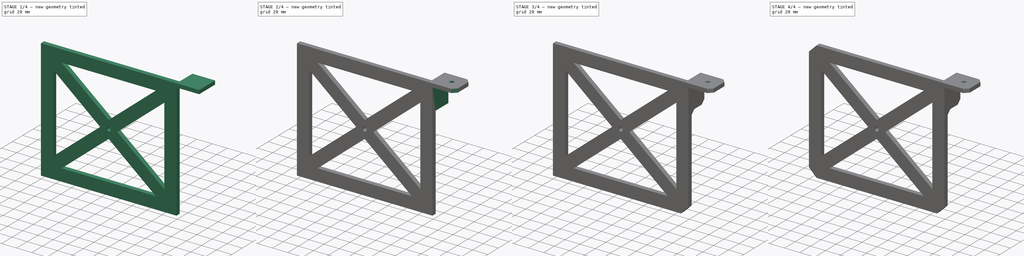
[diagram: build sequence overview — one tinted view per stage of 4, left to right]
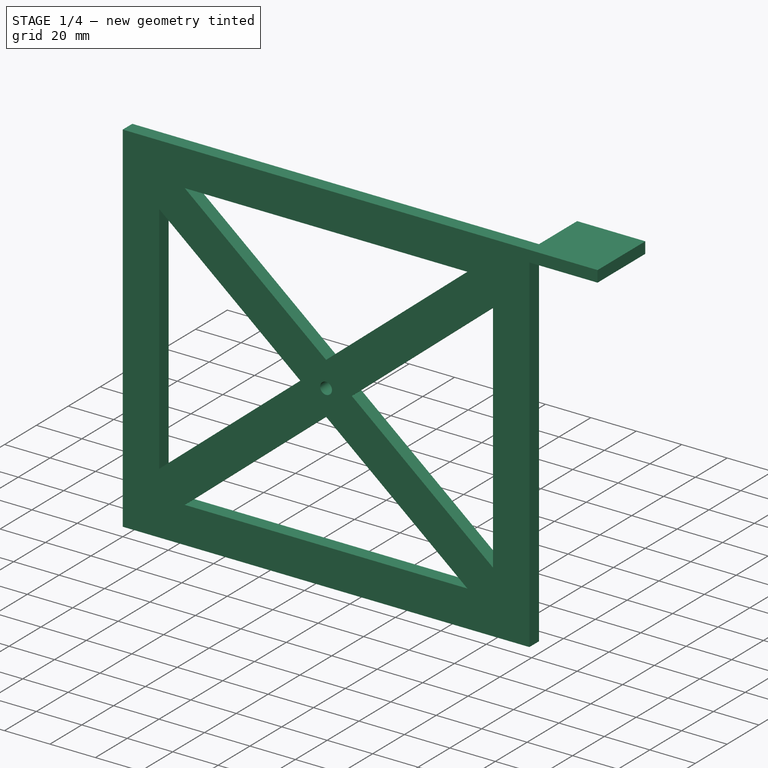
[diagram: stage 1 of 4 — iso view after this stage's code; geometry added in this stage tinted green]
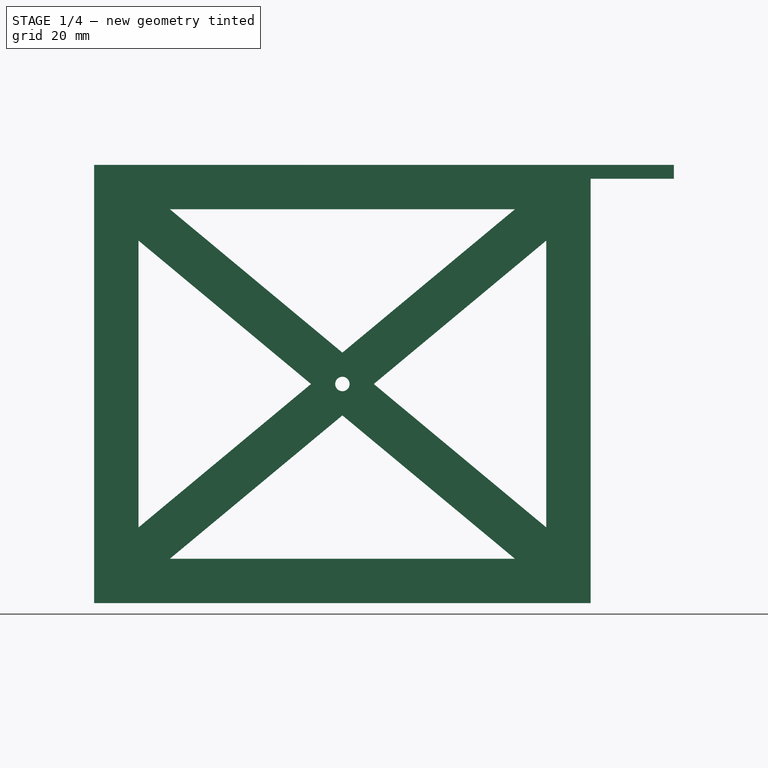
[diagram: stage 1 of 4 — front view after this stage's code; geometry added in this stage tinted green]
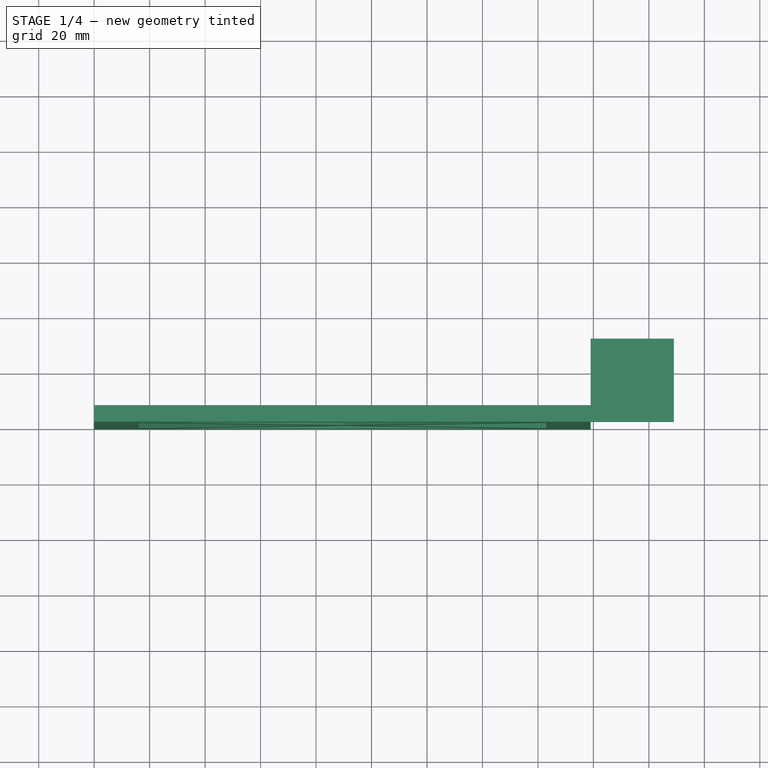
[diagram: stage 1 of 4 — top view after this stage's code; geometry added in this stage tinted green]
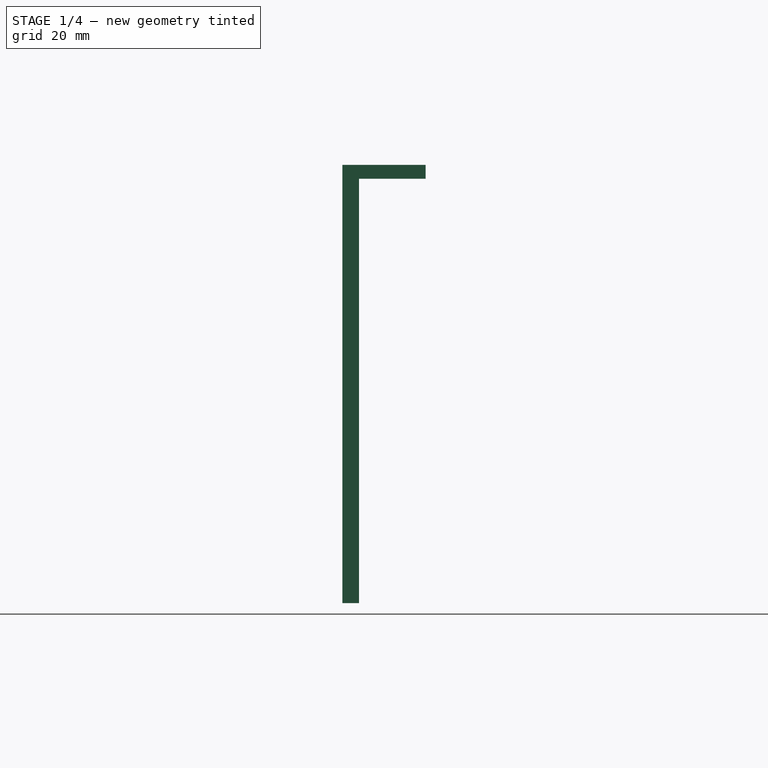
[diagram: stage 1 of 4 — right view after this stage's code; geometry added in this stage tinted green]
FCSTD DOCUMENT  (FreeCAD 1.0R39319 (Git))
Label: smc100c-bracket
License: All rights reserved
objects: PartDesign::Chamfer×6, Sketcher::SketchObject×5, PartDesign::Pad×3, PartDesign::Pocket×1, PartDesign::Body×1, App::Part×1
note: 41 computed .brp shape members not serialized (recipe doc carries the construction recipe); baked Part::Feature solids carry a one-line shape summary decoded from their .brp

FEATURE [Sketcher::SketchObject] Sketch
  ArcFitTolerance = 1e-06
  AttachmentSupport = -> [XZ_Plane]
  FullyConstrained = true
  MakeInternals = false
  MapMode = 5
  Placement = pos=(0,0,0) rot=(1,0,0;1.5708rad)
  sketch-geometry (62):
    g0: LineSegment [constr] StartX=0 StartY=0 StartZ=0 EndX=0 EndY=-5 EndZ=0
    g1: LineSegment [constr] StartX=0 StartY=-5 StartZ=0 EndX=5 EndY=-5 EndZ=0
    g2: LineSegment [constr] StartX=5 StartY=-5 StartZ=0 EndX=5 EndY=0 EndZ=0
    g3: LineSegment [constr] StartX=5 StartY=0 StartZ=0 EndX=0 EndY=0 EndZ=0
    g4: LineSegment [constr] StartX=5 StartY=-5 StartZ=0 EndX=5 EndY=-153 EndZ=0
    g5: LineSegment [constr] StartX=5 StartY=-153 StartZ=0 EndX=174 EndY=-153 EndZ=0
    g6: LineSegment [constr] StartX=174 StartY=-153 StartZ=0 EndX=174 EndY=-5 EndZ=0
    g7: LineSegment [constr] StartX=174 StartY=-5 StartZ=0 EndX=5 EndY=-5 EndZ=0
    g8: Circle CenterX=89.5 CenterY=-79 CenterZ=0 NormalX=0 NormalY=0 NormalZ=1 AngleXU=0 Radius=2.6
    g9: LineSegment StartX=0 StartY=0 StartZ=0 EndX=0 EndY=-158 EndZ=0
    g10: LineSegment StartX=0 StartY=-158 StartZ=0 EndX=179 EndY=-158 EndZ=0
    g11: LineSegment StartX=179 StartY=-158 StartZ=0 EndX=179 EndY=0 EndZ=0
    g12: LineSegment StartX=179 StartY=0 StartZ=0 EndX=0 EndY=0 EndZ=0
    g13: LineSegment [constr] StartX=0 StartY=0 StartZ=0 EndX=0 EndY=-16 EndZ=0
    g14: LineSegment [constr] StartX=0 StartY=-16 StartZ=0 EndX=16 EndY=-16 EndZ=0
    g15: LineSegment [constr] StartX=16 StartY=-16 StartZ=0 EndX=16 EndY=0 EndZ=0
    g16: LineSegment [constr] StartX=16 StartY=0 StartZ=0 EndX=0 EndY=0 EndZ=0
    g17: LineSegment [constr] StartX=0 StartY=-158 StartZ=0 EndX=16 EndY=-158 EndZ=0
    g18: LineSegment [constr] StartX=16 StartY=-158 StartZ=0 EndX=16 EndY=-142 EndZ=0
    g19: LineSegment [constr] StartX=16 StartY=-142 StartZ=0 EndX=0 EndY=-142 EndZ=0
    g20: LineSegment [constr] StartX=0 StartY=-142 StartZ=0 EndX=0 EndY=-158 EndZ=0
    g21: LineSegment [constr] StartX=179 StartY=-158 StartZ=0 EndX=179 EndY=-142 EndZ=0
    g22: LineSegment [constr] StartX=179 StartY=-142 StartZ=0 EndX=163 EndY=-142 EndZ=0
    g23: LineSegment [constr] StartX=163 StartY=-142 StartZ=0 EndX=163 EndY=-158 EndZ=0
    g24: LineSegment [constr] StartX=163 StartY=-158 StartZ=0 EndX=179 EndY=-158 EndZ=0
    g25: LineSegment [constr] StartX=179 StartY=0 StartZ=0 EndX=163 EndY=0 EndZ=0
    g26: LineSegment [constr] StartX=163 StartY=0 StartZ=0 EndX=163 EndY=-16 EndZ=0
    g27: LineSegment [constr] StartX=163 StartY=-16 StartZ=0 EndX=179 EndY=-16 EndZ=0
    g28: LineSegment [constr] StartX=179 StartY=-16 StartZ=0 EndX=179 EndY=0 EndZ=0
    g29: LineSegment [constr] StartX=163 StartY=-16 StartZ=0 EndX=151.7 EndY=-16 EndZ=0
    g30: LineSegment [constr] StartX=151.7 StartY=-16 StartZ=0 EndX=151.7 EndY=-27.3 EndZ=0
    g31: LineSegment [constr] StartX=151.7 StartY=-27.3 StartZ=0 EndX=163 EndY=-27.3 EndZ=0
    g32: LineSegment [constr] StartX=163 StartY=-27.3 StartZ=0 EndX=163 EndY=-16 EndZ=0
    g33: LineSegment [constr] StartX=163 StartY=-142 StartZ=0 EndX=163 EndY=-130.7 EndZ=0
    g34: LineSegment [constr] StartX=163 StartY=-130.7 StartZ=0 EndX=151.7 EndY=-130.7 EndZ=0
    g35: LineSegment [constr] StartX=151.7 StartY=-130.7 StartZ=0 EndX=151.7 EndY=-142 EndZ=0
    g36: LineSegment [constr] StartX=151.7 StartY=-142 StartZ=0 EndX=163 EndY=-142 EndZ=0
    g37: LineSegment [constr] StartX=16 StartY=-142 StartZ=0 EndX=27.3 EndY=-142 EndZ=0
    g38: LineSegment [constr] StartX=27.3 StartY=-142 StartZ=0 EndX=27.3 EndY=-130.7 EndZ=0
    g39: LineSegment [constr] StartX=27.3 StartY=-130.7 StartZ=0 EndX=16 EndY=-130.7 EndZ=0
    g40: LineSegment [constr] StartX=16 StartY=-130.7 StartZ=0 EndX=16 EndY=-142 EndZ=0
    g41: LineSegment [constr] StartX=16 StartY=-16 StartZ=0 EndX=16 EndY=-27.3 EndZ=0
    g42: LineSegment [constr] StartX=16 StartY=-27.3 StartZ=0 EndX=27.3 EndY=-27.3 EndZ=0
    g43: LineSegment [constr] StartX=27.3 StartY=-27.3 StartZ=0 EndX=27.3 EndY=-16 EndZ=0
    g44: LineSegment [constr] StartX=27.3 StartY=-16 StartZ=0 EndX=16 EndY=-16 EndZ=0
    g45: LineSegment StartX=16 StartY=-27.3 StartZ=0 EndX=16 EndY=-130.7 EndZ=0
    g46: LineSegment StartX=27.3 StartY=-142 StartZ=0 EndX=151.7 EndY=-142 EndZ=0
    g47: LineSegment StartX=163 StartY=-130.7 StartZ=0 EndX=163 EndY=-27.3 EndZ=0
    g48: LineSegment StartX=151.7 StartY=-16 StartZ=0 EndX=27.3 EndY=-16 EndZ=0
    g49: LineSegment [constr] StartX=78.185 StartY=-90.315 StartZ=0 EndX=100.815 EndY=-90.315 EndZ=0
    g50: LineSegment [constr] StartX=100.815 StartY=-90.315 StartZ=0 EndX=100.815 EndY=-67.685 EndZ=0
    g51: LineSegment [constr] StartX=100.815 StartY=-67.685 StartZ=0 EndX=78.185 EndY=-67.685 EndZ=0
    g52: LineSegment [constr] StartX=78.185 StartY=-67.685 StartZ=0 EndX=78.185 EndY=-90.315 EndZ=0
    g53: GeomPoint [constr] X=89.5 Y=-79 Z=0
    g54: LineSegment StartX=27.3 StartY=-142 StartZ=0 EndX=89.5 EndY=-90.315 EndZ=0
    g55: LineSegment StartX=89.5 StartY=-90.315 StartZ=0 EndX=151.7 EndY=-142 EndZ=0
    g56: LineSegment StartX=163 StartY=-130.7 StartZ=0 EndX=100.815 EndY=-79 EndZ=0
    g57: LineSegment StartX=100.815 StartY=-79 StartZ=0 EndX=163 EndY=-27.3 EndZ=0
    g58: LineSegment StartX=151.7 StartY=-16 StartZ=0 EndX=89.5 EndY=-67.685 EndZ=0
    g59: LineSegment StartX=89.5 StartY=-67.685 StartZ=0 EndX=27.3 EndY=-16 EndZ=0
    g60: LineSegment StartX=16 StartY=-27.3 StartZ=0 EndX=78.185 EndY=-79 EndZ=0
    g61: LineSegment StartX=78.185 StartY=-79 StartZ=0 EndX=16 EndY=-130.7 EndZ=0
  constraints (159):
    c: Coincident(g0,g1)
    c: Coincident(g1,g2)
    c: Coincident(g2,g3)
    c: Coincident(g3,g0)
    c: Vertical(g0)
    c: Vertical(g2)
    c: Horizontal(g1)
    c: Horizontal(g3)
    c: Distance(g0,g2) = 5
    c: Distance(g1,g3) = 5
    c: Coincident(g0,g-1)
    c: Coincident(g4,g5)
    c: Coincident(g5,g6)
    c: Coincident(g6,g7)
    c: Coincident(g7,g4)
    c: Vertical(g4)
    c: Vertical(g6)
    c: Horizontal(g5)
    c: Horizontal(g7)
    c: Distance(g4,g6) = 169
    c: Distance(g5,g7) = 148
    c: Coincident(g4,g1)
    c: Diameter(g8) = 5.2
    c: Symmetric(g6,g4,g8)
    c: Distance(g9) = 158
    c: Coincident(g9,g0)
    c: PointOnObject(g9,g-2)
    c: Distance(g10) = 179
    c: Coincident(g10,g9)
    c: Horizontal(g10)
    c: Coincident(g11,g10)
    c: PointOnObject(g11,g-1)
    c: Vertical(g11)
    c: Coincident(g12,g11)
    c: Coincident(g12,g0)
    c: Coincident(g13,g14)
    c: Coincident(g14,g15)
    c: Coincident(g15,g16)
    c: Coincident(g16,g13)
    c: Vertical(g13)
    c: Vertical(g15)
    c: Horizontal(g14)
    c: Horizontal(g16)
    c: Distance(g13,g15) = 16
    c: Distance(g14,g16) = 16
    c: Coincident(g13,g0)
    c: Coincident(g17,g18)
    c: Coincident(g18,g19)
    c: Coincident(g19,g20)
    c: Coincident(g20,g17)
    c: Horizontal(g17)
    c: Horizontal(g19)
    c: Vertical(g18)
    c: Vertical(g20)
    c: Distance(g18,g20) = 16
    c: Distance(g17,g19) = 16
    c: Coincident(g17,g9)
    c: Coincident(g21,g22)
    c: Coincident(g22,g23)
    c: Coincident(g23,g24)
    c: Coincident(g24,g21)
    c: Vertical(g21)
    c: Vertical(g23)
    c: Horizontal(g22)
    c: Horizontal(g24)
    c: Distance(g21,g23) = 16
    c: Distance(g22,g24) = 16
    c: Coincident(g21,g10)
    c: Coincident(g25,g26)
    c: Coincident(g26,g27)
    c: Coincident(g27,g28)
    c: Coincident(g28,g25)
    c: Horizontal(g25)
    c: Horizontal(g27)
    c: Vertical(g26)
    c: Vertical(g28)
    c: Distance(g26,g28) = 16
    c: Distance(g25,g27) = 16
    c: Coincident(g25,g11)
    c: Coincident(g29,g30)
    c: Coincident(g30,g31)
    c: Coincident(g31,g32)
    c: Coincident(g32,g29)
    c: Horizontal(g29)
    c: Horizontal(g31)
    c: Vertical(g30)
    c: Vertical(g32)
    c: Distance(g30,g32) = 11.3
    c: Distance(g29,g31) = 11.3
    c: Coincident(g29,g26)
    c: Coincident(g33,g34)
    c: Coincident(g34,g35)
    c: Coincident(g35,g36)
    c: Coincident(g36,g33)
    c: Vertical(g33)
    c: Vertical(g35)
    c: Horizontal(g34)
    c: Horizontal(g36)
    c: Distance(g33,g35) = 11.3
    c: Distance(g34,g36) = 11.3
    c: Coincident(g33,g22)
    c: Coincident(g37,g38)
    c: Coincident(g38,g39)
    c: Coincident(g39,g40)
    c: Coincident(g40,g37)
    c: Horizontal(g37)
    c: Horizontal(g39)
    c: Vertical(g38)
    c: Vertical(g40)
    c: Distance(g38,g40) = 11.3
    c: Distance(g37,g39) = 11.3
    c: Coincident(g37,g18)
    c: Coincident(g41,g42)
    c: Coincident(g42,g43)
    c: Coincident(g43,g44)
    c: Coincident(g44,g41)
    c: Vertical(g41)
    c: Vertical(g43)
    c: Horizontal(g42)
    c: Horizontal(g44)
    c: Distance(g41,g43) = 11.3
    c: Distance(g42,g44) = 11.3
    c: Coincident(g41,g14)
    c: Coincident(g45,g41)
    c: Coincident(g45,g39)
    c: Coincident(g46,g37)
    c: Coincident(g46,g35)
    c: Coincident(g47,g33)
    c: Coincident(g47,g31)
    c: Coincident(g48,g29)
    c: Coincident(g48,g43)
    c: Coincident(g49,g50)
    c: Coincident(g50,g51)
    c: Coincident(g51,g52)
    c: Coincident(g52,g49)
    c: Horizontal(g49)
    c: Horizontal(g51)
    c: Vertical(g50)
    c: Vertical(g52)
    c: Symmetric(g51,g49,g53)
    c: Distance(g50,g52) = 22.63
    c: Distance(g49,g51) = 22.63
    c: Coincident(g53,g8)
    c: Coincident(g54,g37)
    c: Symmetric(g49,g49,g54)
    c: Coincident(g55,g54)
    c: Coincident(g55,g35)
    c: Coincident(g56,g33)
    c: Symmetric(g50,g50,g56)
    c: Coincident(g57,g56)
    c: Coincident(g57,g31)
    c: Coincident(g58,g29)
    c: Symmetric(g51,g51,g58)
    c: Coincident(g59,g58)
    c: Coincident(g59,g43)
    c: Coincident(g60,g41)
    c: Symmetric(g52,g52,g60)
    c: Coincident(g61,g60)
    c: Coincident(g61,g39)
FEATURE [PartDesign::Pad] Pad
  Direction = (0,-1,2e-16)
  Length = 6
  Length2 = 10
  Placement = pos=(0,0,0) rot=(1,0,0;1.5708rad)
  Profile = -> Sketch
  ReferenceAxis = -> Sketch [N_Axis]
  Refine = true
  Reversed = true
  Suppressed = false
  Type = 0
FEATURE [Sketcher::SketchObject] Sketch001
  ArcFitTolerance = 1e-06
  AttachmentSupport = -> [Pad]
  FullyConstrained = true
  MakeInternals = false
  MapMode = 5
  Placement = pos=(179,0,0) rot=(0.707107,0,0.707107;3.14159rad)
  sketch-geometry (4):
    g0: LineSegment StartX=0 StartY=0 StartZ=0 EndX=-5 EndY=0 EndZ=0
    g1: LineSegment StartX=-5 StartY=0 StartZ=0 EndX=-5 EndY=-30 EndZ=0
    g2: LineSegment StartX=-5 StartY=-30 StartZ=0 EndX=0 EndY=-30 EndZ=0
    g3: LineSegment StartX=0 StartY=-30 StartZ=0 EndX=0 EndY=0 EndZ=0
  constraints (11):
    c: Coincident(g0,g1)
    c: Coincident(g1,g2)
    c: Coincident(g2,g3)
    c: Coincident(g3,g0)
    c: Horizontal(g0)
    c: Horizontal(g2)
    c: Vertical(g1)
    c: Vertical(g3)
    c: Distance(g1,g3) = 5
    c: Distance(g0,g2) = 30
    c: Coincident(g0,g-1)
FEATURE [PartDesign::Pad] Pad001
  BaseFeature = -> Pad
  Direction = (1,0,-2e-16)
  Length = 30
  Length2 = 10
  Placement = pos=(0,0,0) rot=(1,0,0;1.5708rad)
  Profile = -> Sketch001
  ReferenceAxis = -> Sketch001 [N_Axis]
  Refine = true
  Suppressed = false
  Type = 0
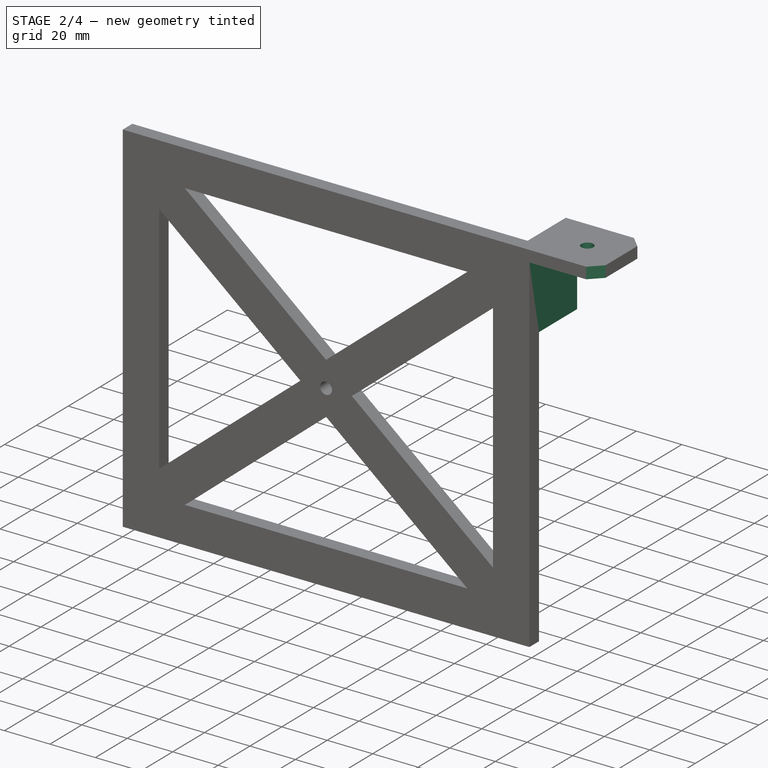
[diagram: stage 2 of 4 — iso view after this stage's code; geometry added in this stage tinted green]
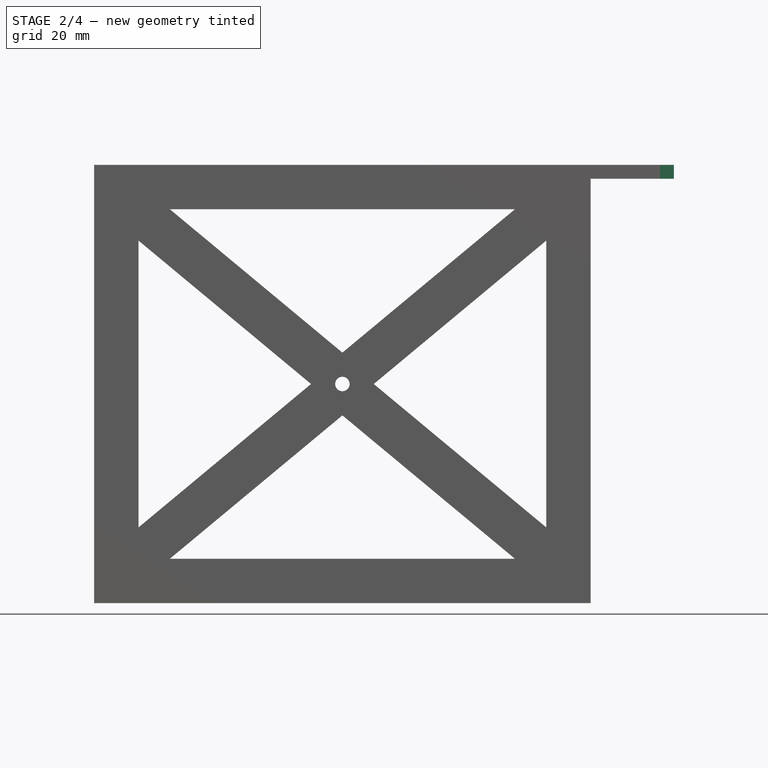
[diagram: stage 2 of 4 — front view after this stage's code; geometry added in this stage tinted green]
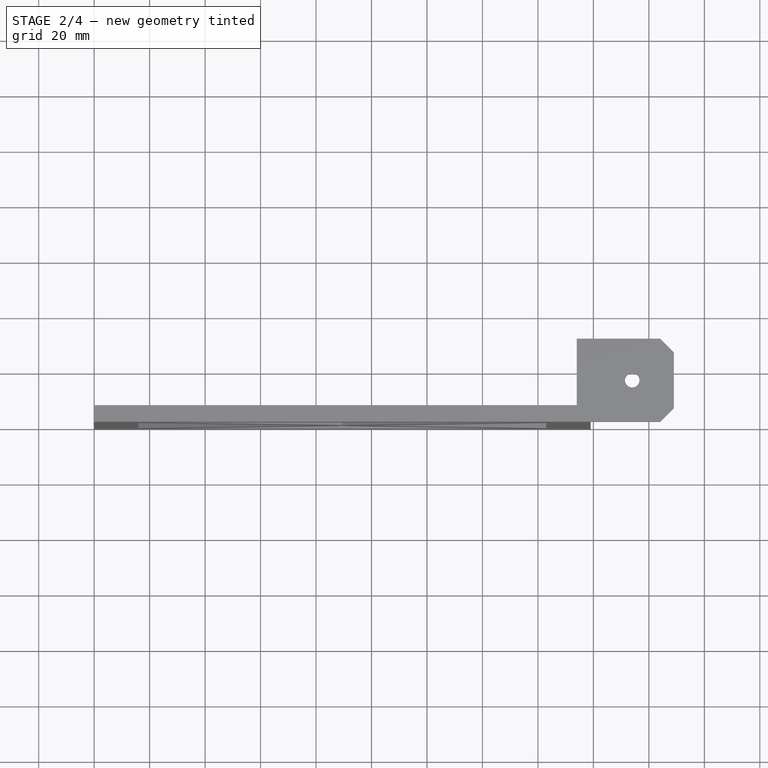
[diagram: stage 2 of 4 — top view after this stage's code; geometry added in this stage tinted green]
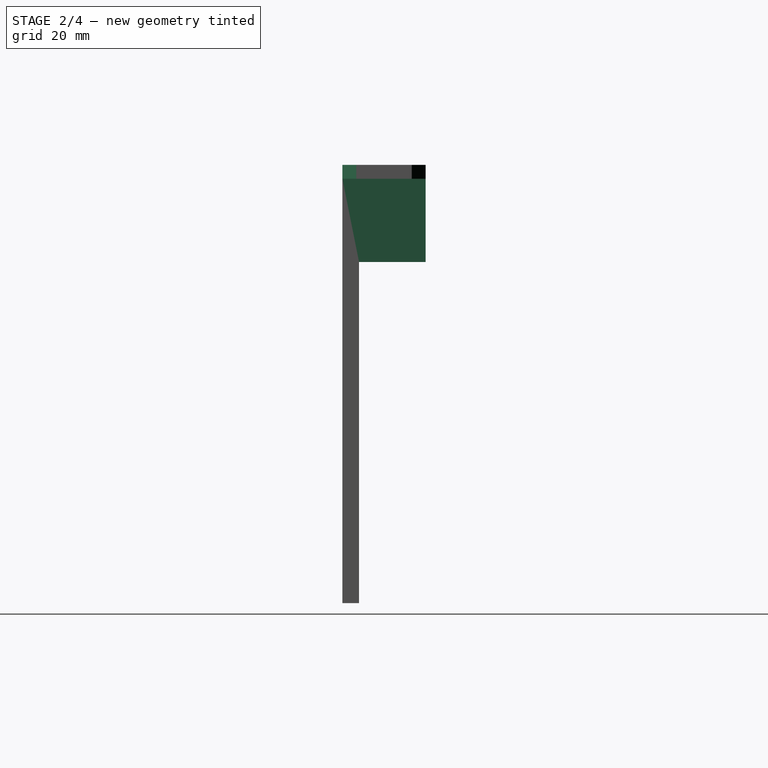
[diagram: stage 2 of 4 — right view after this stage's code; geometry added in this stage tinted green]
FEATURE [Sketcher::SketchObject] Sketch002
  ArcFitTolerance = 1e-06
  AttachmentSupport = -> [Pad001]
  FullyConstrained = true
  MakeInternals = false
  MapMode = 5
  Placement = pos=(0,6,0) rot=(-1,0,0;1.5708rad)
  sketch-geometry (5):
    g0: LineSegment [constr] StartX=0 StartY=0 StartZ=0 EndX=174 EndY=0 EndZ=0
    g1: LineSegment StartX=174 StartY=0 StartZ=0 EndX=179 EndY=0 EndZ=0
    g2: LineSegment StartX=179 StartY=0 StartZ=0 EndX=179 EndY=35 EndZ=0
    g3: LineSegment StartX=179 StartY=35 StartZ=0 EndX=174 EndY=35 EndZ=0
    g4: LineSegment StartX=174 StartY=35 StartZ=0 EndX=174 EndY=0 EndZ=0
  constraints (14):
    c: Distance(g0) = 174
    c: Coincident(g0,g-1)
    c: Horizontal(g0)
    c: Coincident(g1,g2)
    c: Coincident(g2,g3)
    c: Coincident(g3,g4)
    c: Coincident(g4,g1)
    c: Horizontal(g1)
    c: Horizontal(g3)
    c: Vertical(g2)
    c: Vertical(g4)
    c: Distance(g2,g4) = 5
    c: Distance(g1,g3) = 35
    c: Coincident(g1,g0)
FEATURE [PartDesign::Pad] Pad002
  BaseFeature = -> Pad001
  Direction = (0,1,2e-16)
  Length = 24
  Length2 = 10
  Placement = pos=(0,0,0) rot=(1,0,0;1.5708rad)
  Profile = -> Sketch002
  ReferenceAxis = -> Sketch002 [N_Axis]
  Refine = true
  Suppressed = false
  Type = 0
FEATURE [Sketcher::SketchObject] Sketch003
  ArcFitTolerance = 1e-06
  AttachmentSupport = -> [Pad002]
  FullyConstrained = true
  MakeInternals = false
  MapMode = 5
  Placement = pos=(0,0,-7e-16) rot=(0,0,1;3.14159rad)
  sketch-geometry (5):
    g0: LineSegment [constr] StartX=0 StartY=0 StartZ=0 EndX=-194 EndY=0 EndZ=0
    g1: LineSegment [constr] StartX=-194 StartY=0 StartZ=0 EndX=-194 EndY=-15 EndZ=0
    g2: LineSegment [constr] StartX=-194 StartY=-15 StartZ=0 EndX=0 EndY=-15 EndZ=0
    g3: LineSegment [constr] StartX=0 StartY=-15 StartZ=0 EndX=0 EndY=0 EndZ=0
    g4: Circle CenterX=-194 CenterY=-15 CenterZ=0 NormalX=0 NormalY=0 NormalZ=1 AngleXU=0 Radius=2.6
  constraints (13):
    c: Coincident(g0,g1)
    c: Coincident(g1,g2)
    c: Coincident(g2,g3)
    c: Coincident(g3,g0)
    c: Horizontal(g0)
    c: Horizontal(g2)
    c: Vertical(g1)
    c: Vertical(g3)
    c: Distance(g1,g3) = 194
    c: Distance(g0,g2) = 15
    c: Coincident(g0,g-1)
    c: Diameter(g4) = 5.2
    c: Coincident(g4,g1)
FEATURE [PartDesign::Pocket] Pocket
  BaseFeature = -> Pad002
  Direction = (0,0,-1)
  Length = 7
  Length2 = 5
  Placement = pos=(0,0,0) rot=(1,0,0;1.5708rad)
  Profile = -> Sketch003
  ReferenceAxis = -> Sketch003 [N_Axis]
  Refine = true
  Suppressed = false
  Type = 0
FEATURE [PartDesign::Chamfer] Chamfer
  Angle = 45
  Base = -> Pocket [Edge47,Edge16]
  BaseFeature = -> Pocket
  ChamferType = 0
  FlipDirection = false
  Placement = pos=(0,0,0) rot=(1,0,0;1.5708rad)
  Refine = true
  Size = 5
  Size2 = 1
  SupportTransform = false
  Suppressed = false
  UseAllEdges = false
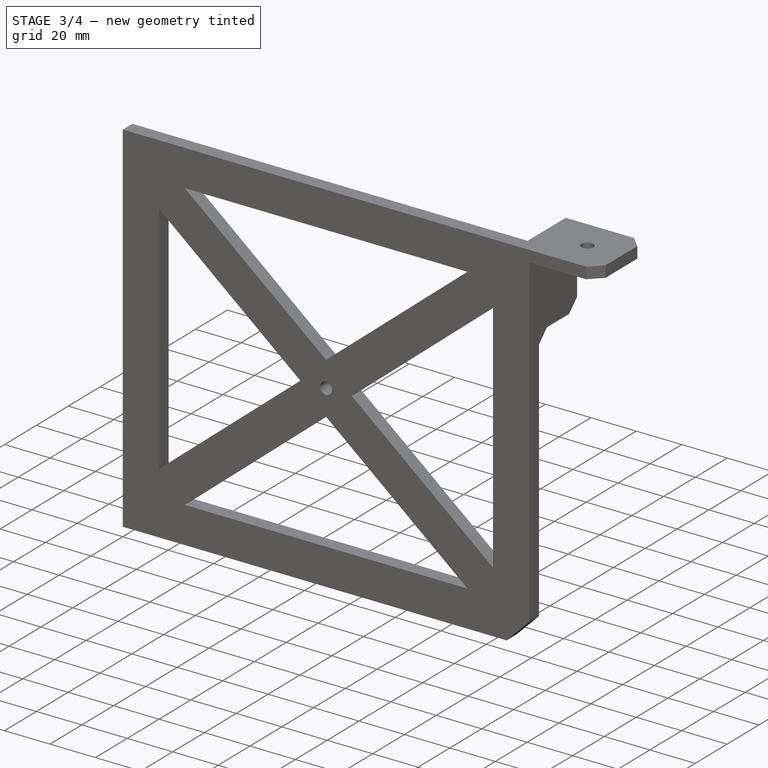
[diagram: stage 3 of 4 — iso view after this stage's code; geometry added in this stage tinted green]
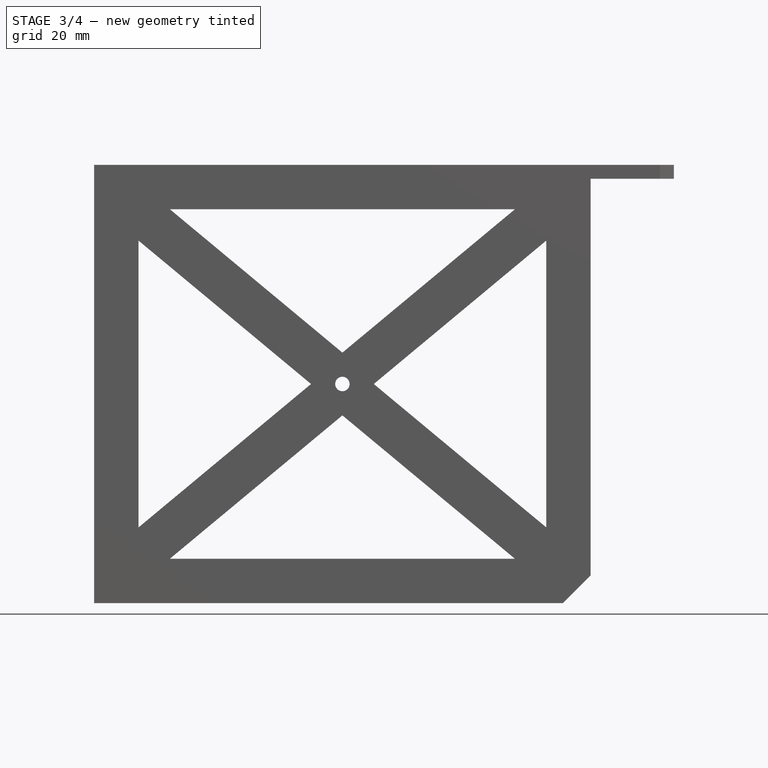
[diagram: stage 3 of 4 — front view after this stage's code; geometry added in this stage tinted green]
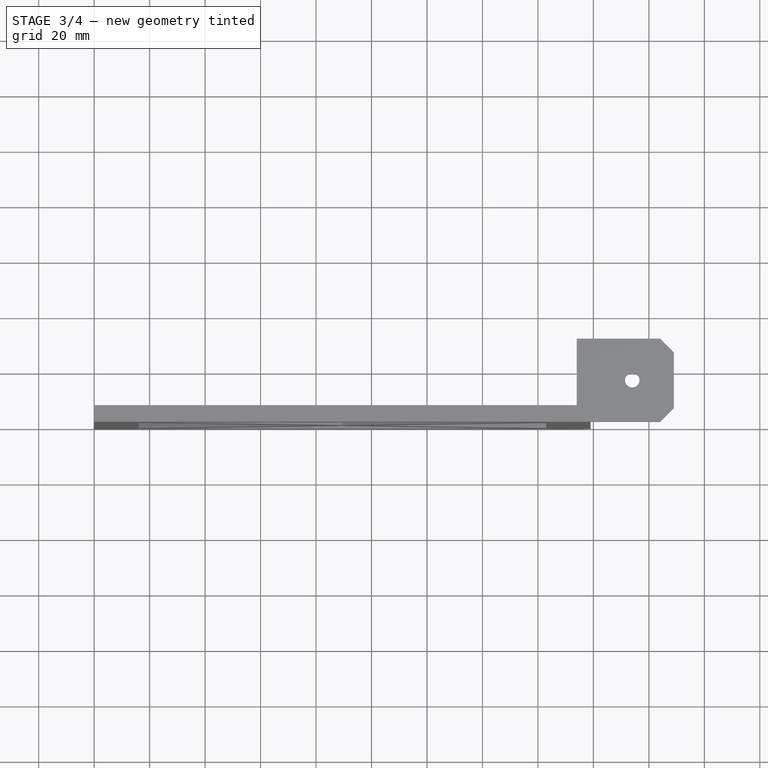
[diagram: stage 3 of 4 — top view after this stage's code; geometry added in this stage tinted green]
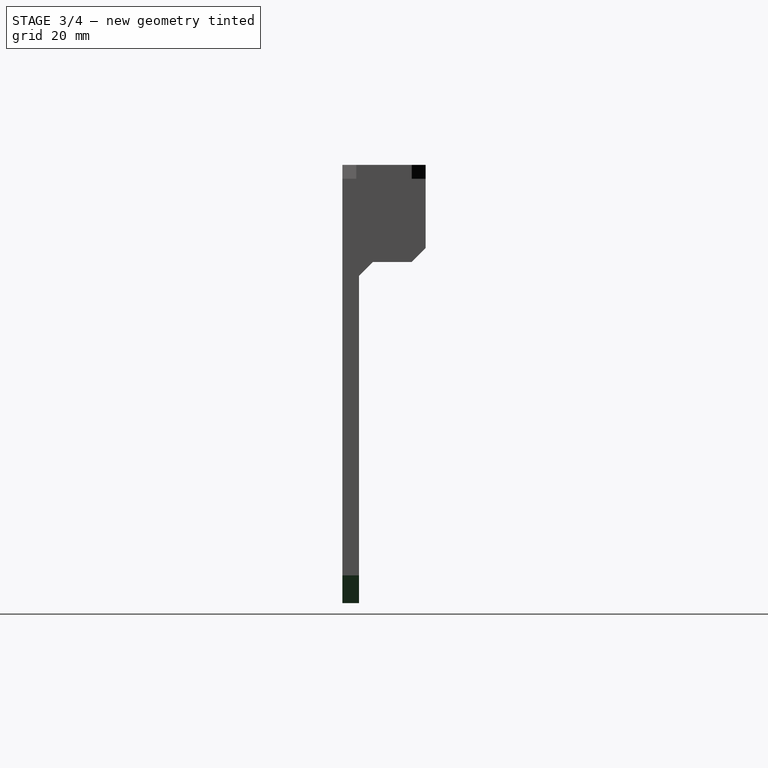
[diagram: stage 3 of 4 — right view after this stage's code; geometry added in this stage tinted green]
FEATURE [PartDesign::Chamfer] Chamfer001
  Angle = 45
  Base = -> Chamfer [Edge57]
  BaseFeature = -> Chamfer
  ChamferType = 0
  FlipDirection = false
  Placement = pos=(0,0,0) rot=(1,0,0;1.5708rad)
  Refine = true
  Size = 5
  Size2 = 1
  SupportTransform = false
  Suppressed = false
  UseAllEdges = false
FEATURE [PartDesign::Chamfer] Chamfer002
  Angle = 45
  Base = -> Chamfer001 [Edge8]
  BaseFeature = -> Chamfer001
  ChamferType = 0
  FlipDirection = false
  Placement = pos=(0,0,0) rot=(1,0,0;1.5708rad)
  Refine = true
  Size = 5
  Size2 = 1
  SupportTransform = false
  Suppressed = false
  UseAllEdges = false
FEATURE [PartDesign::Chamfer] Chamfer003
  Angle = 45
  Base = -> Chamfer002 [Edge42]
  BaseFeature = -> Chamfer002
  ChamferType = 0
  FlipDirection = false
  Placement = pos=(0,0,0) rot=(1,0,0;1.5708rad)
  Refine = true
  Size = 10
  Size2 = 1
  SupportTransform = false
  Suppressed = false
  UseAllEdges = false
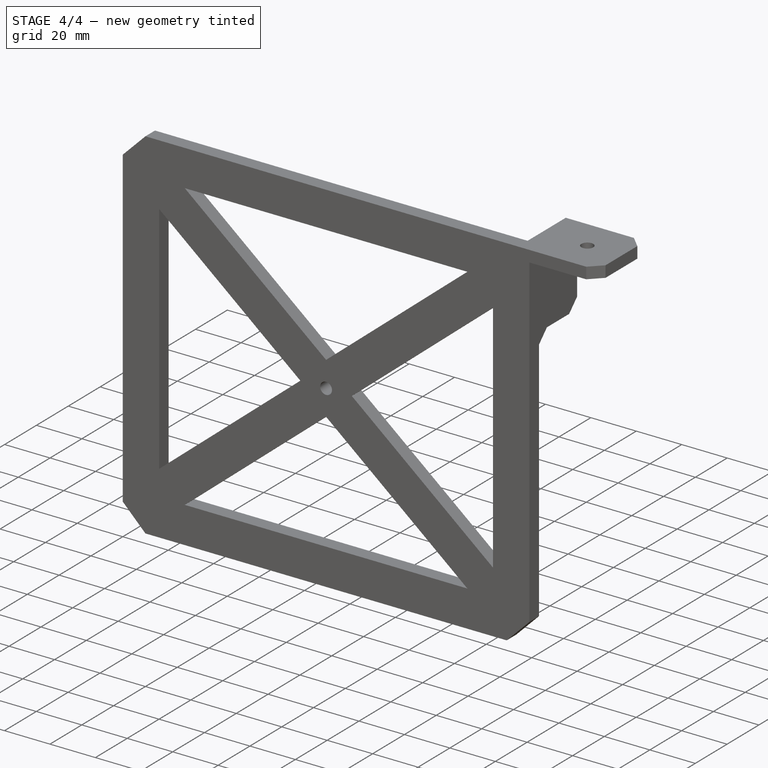
[diagram: stage 4 of 4 — iso view after this stage's code; geometry added in this stage tinted green]
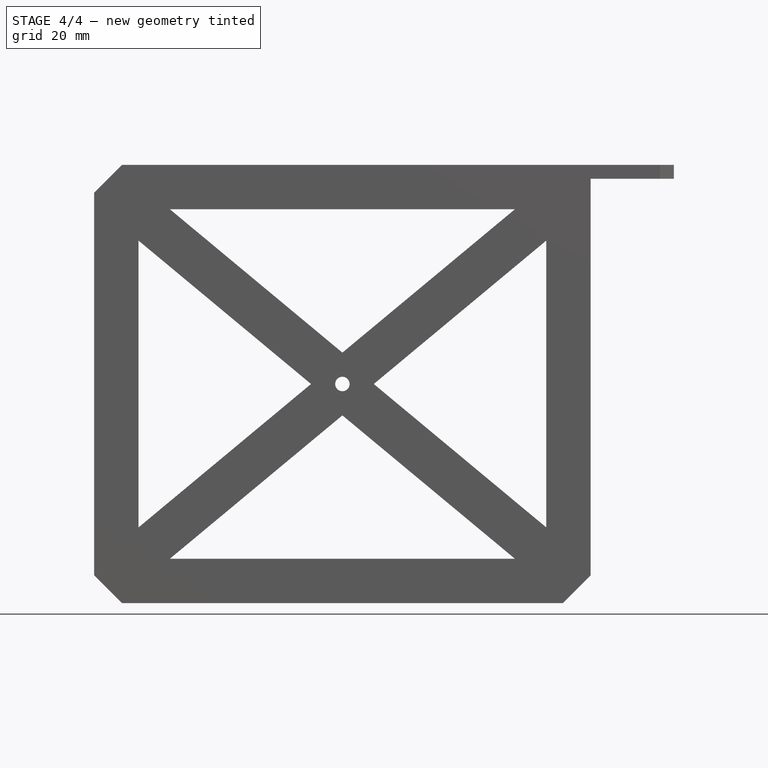
[diagram: stage 4 of 4 — front view after this stage's code; geometry added in this stage tinted green]
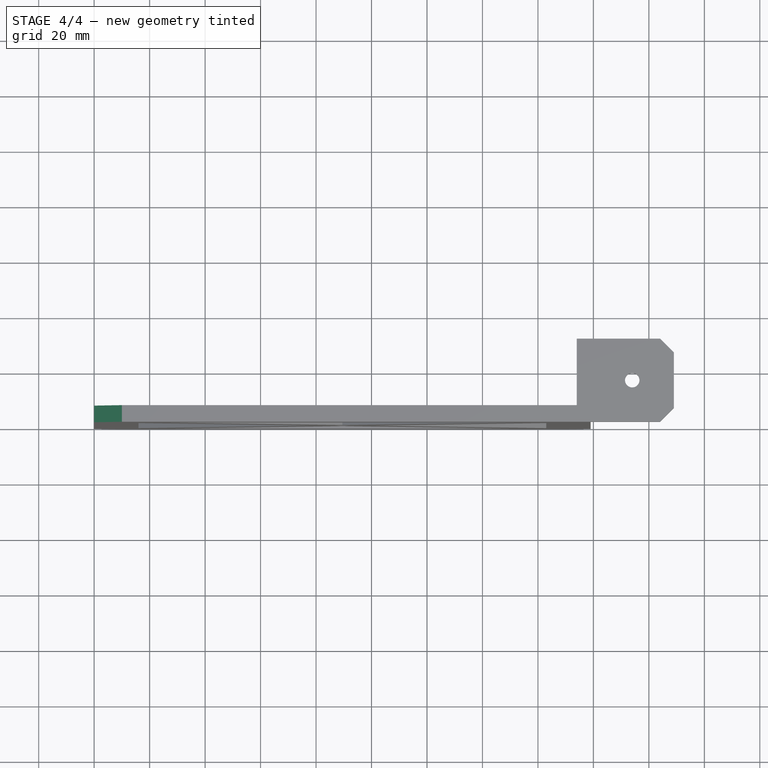
[diagram: stage 4 of 4 — top view after this stage's code; geometry added in this stage tinted green]
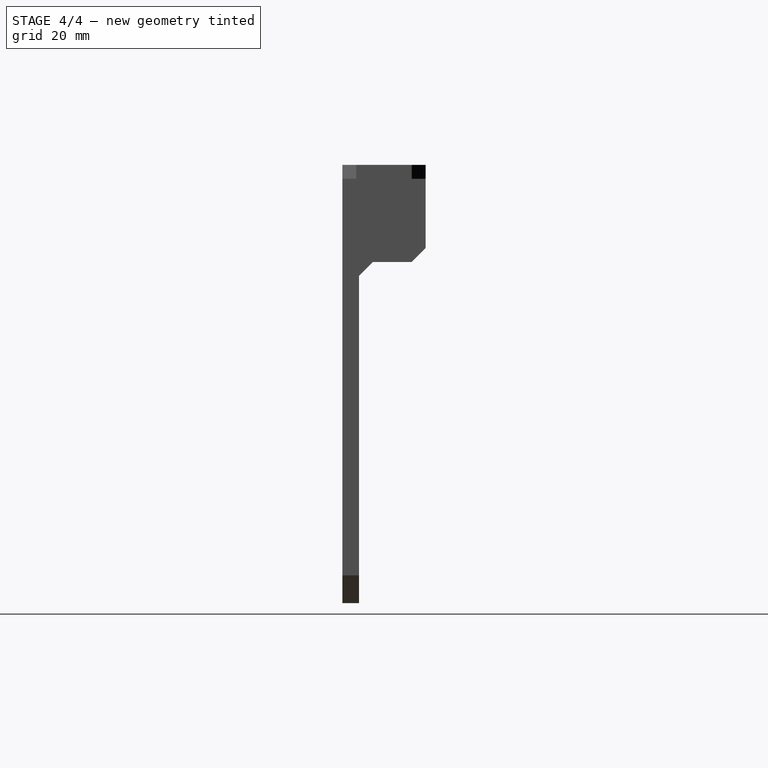
[diagram: stage 4 of 4 — right view after this stage's code; geometry added in this stage tinted green]
FEATURE [PartDesign::Chamfer] Chamfer004
  Angle = 45
  Base = -> Chamfer003 [Edge34]
  BaseFeature = -> Chamfer003
  ChamferType = 0
  FlipDirection = false
  Placement = pos=(0,0,0) rot=(1,0,0;1.5708rad)
  Refine = true
  Size = 10
  Size2 = 1
  SupportTransform = false
  Suppressed = false
  UseAllEdges = false
FEATURE [PartDesign::Chamfer] Chamfer005
  Angle = 45
  Base = -> Chamfer004 [Edge31]
  BaseFeature = -> Chamfer004
  ChamferType = 0
  FlipDirection = false
  Placement = pos=(0,0,0) rot=(1,0,0;1.5708rad)
  Refine = true
  Size = 10
  Size2 = 1
  SupportTransform = false
  Suppressed = false
  UseAllEdges = false
FEATURE [Sketcher::SketchObject] Sketch004
  ArcFitTolerance = 1e-06
  AttachmentSupport = -> [Chamfer005]
  FullyConstrained = true
  MakeInternals = false
  MapMode = 5
  Placement = pos=(0,6,0) rot=(-1,0,0;1.5708rad)
FEATURE [PartDesign::Body] Body  label="smc100c-bracket-body"
  AllowCompound = false
  Group = -> [Sketch,Pad,Sketch001,Pad001,Sketch002,Pad002,Sketch003,Pocket,Chamfer,Chamfer001,Chamfer002,Chamfer003,Chamfer004,Chamfer005,Sketch004]
  Origin = -> Origin
  Tip = -> Chamfer005
FEATURE [App::Part] Part  label="smc100c-bracket-part"
  Group = -> [Body]
  Origin = -> Origin001
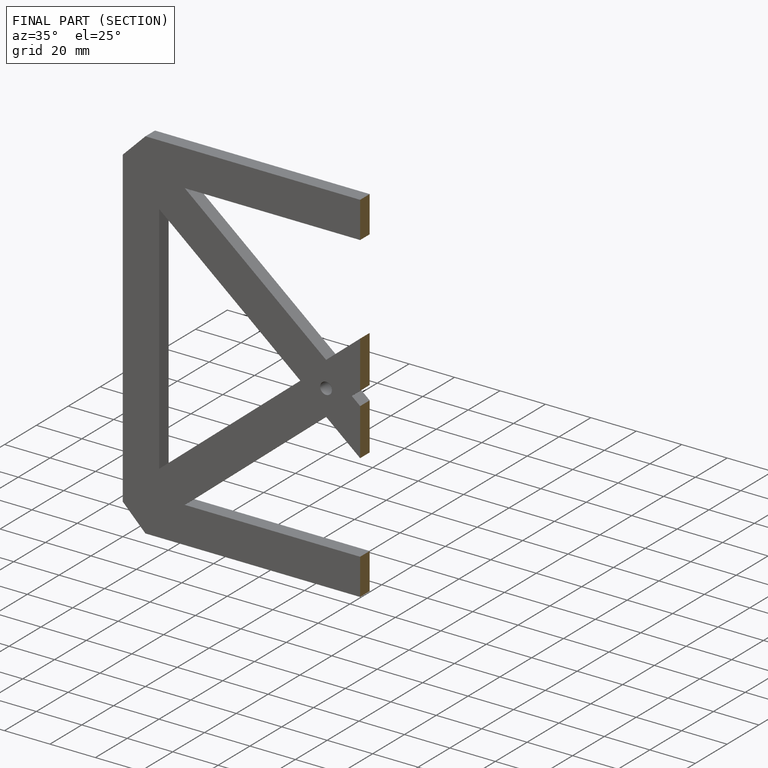
[diagram: finished part — half-section view (interior)]
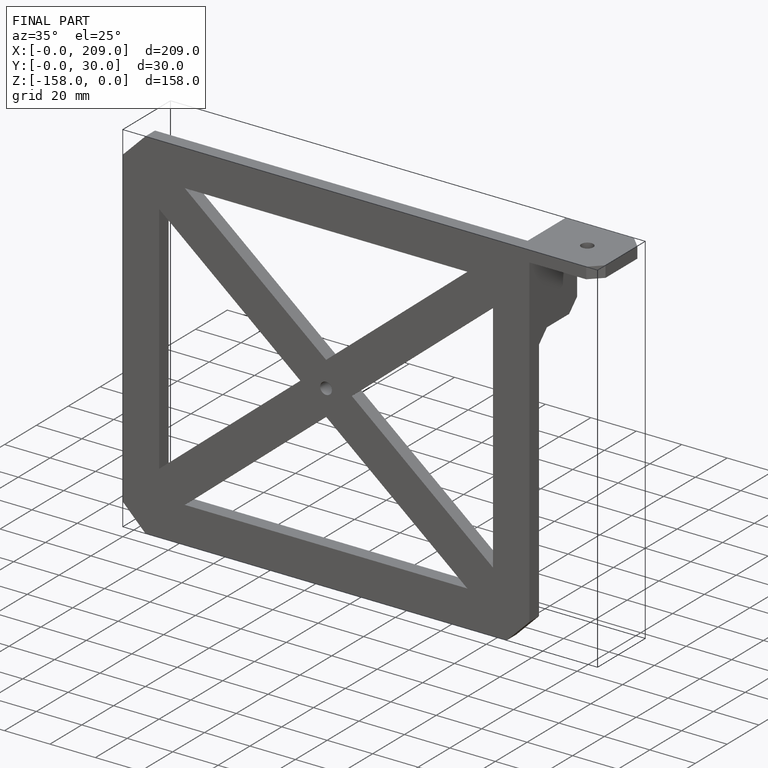
[diagram: finished part — iso view with bounding-box wireframe]
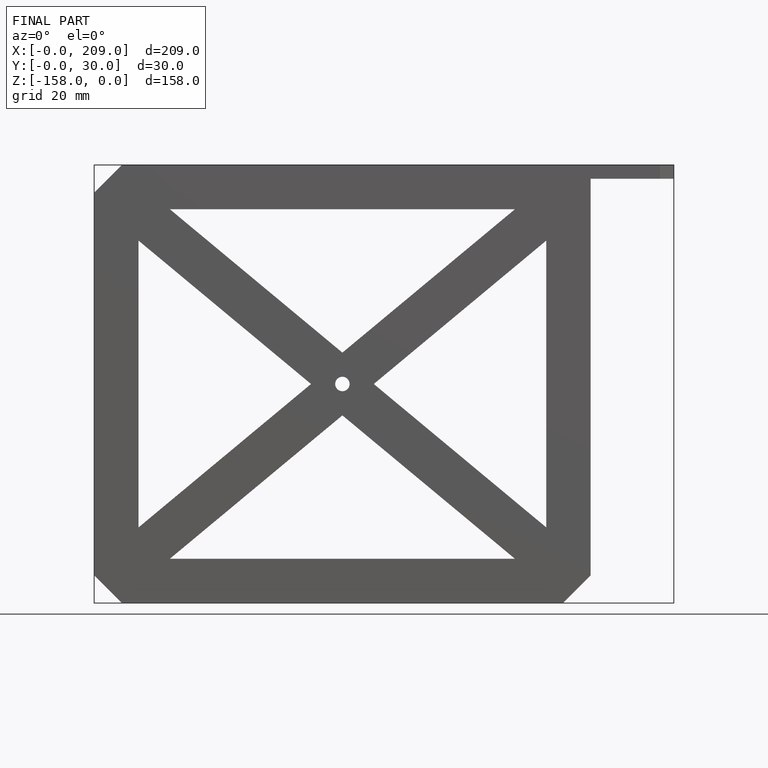
[diagram: finished part — front view with bounding-box wireframe]
